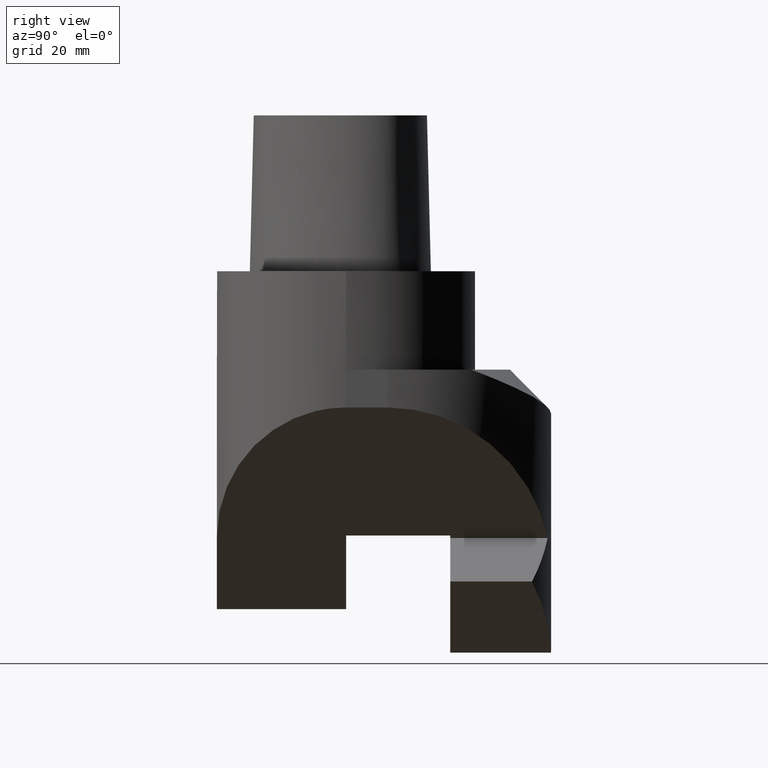
[diagram: clean part render]
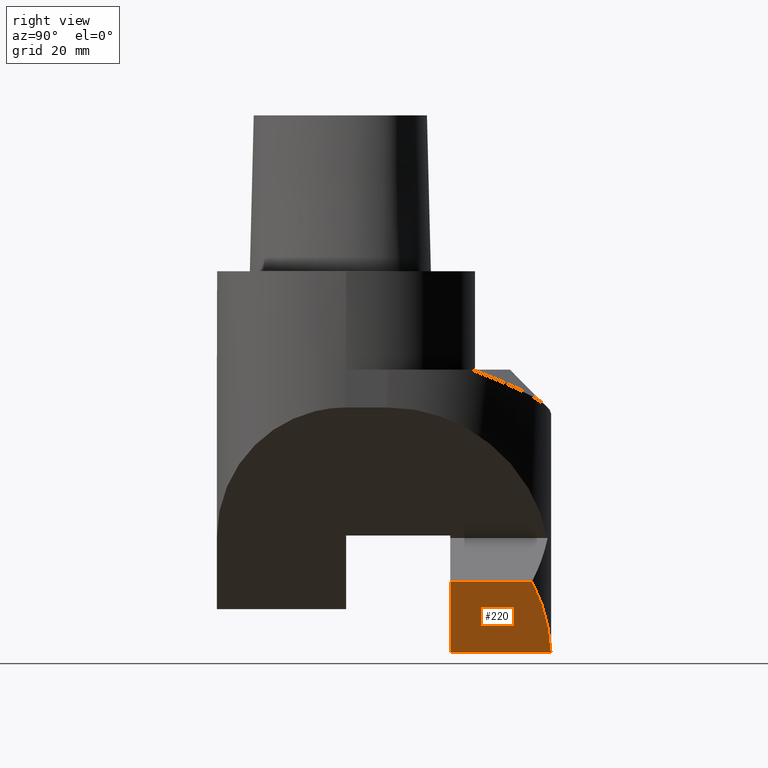
[diagram: same view with one face highlighted and labeled with its STEP entity id]
A machine part, right view. The second image highlights one B-rep face of the part: STEP entity #220.
In plain terms, the highlighted planar face has unit normal (-0.7071, 0, 0.7071).
Its self-contained STEP definition (entity closure, byte-faithful):
#205=EDGE_CURVE('Unnamed[1]',#397,#466,#467,.T.);
#215=EDGE_CURVE('Unnamed[1]',#397,#379,#478,.T.);
#220=ADVANCED_FACE('Unnamed[1]',(#483),#484,.F.);
#244=EDGE_CURVE('Unnamed[1]',#390,#466,#515,.T.);
#291=EDGE_CURVE('Unnamed[1]',#379,#390,#568,.T.);
#379=VERTEX_POINT('',#681);
#390=VERTEX_POINT('',#695);
#397=VERTEX_POINT('',#705);
#466=VERTEX_POINT('',#963);
#467=LINE('',#964,#965);
#478=LINE('',#1006,#1007);
#483=FACE_OUTER_BOUND('',#1014,.T.);
#484=PLANE('',#1015);
#515=LINE('',#1078,#1079);
#568=ELLIPSE('',#1200,56.5685424949241,40.0);
#681=CARTESIAN_POINT('',(10.253271031921,45.331147528125,-75.6756611562134));
#695=CARTESIAN_POINT('',(-7.07106781186543,49.9744450828431,-93.0));
#705=CARTESIAN_POINT('',(10.253271031921,25.4000707427662,-75.6756611562134));
#963=CARTESIAN_POINT('',(-7.07113729083583,25.3999759644538,-93.0000694789704));
#964=CARTESIAN_POINT('',(-2.74005258002291,25.3999996589369,-88.6689847681575));
#965=VECTOR('',#1406,1.0);
#1006=CARTESIAN_POINT('',(10.253271031921,-1.86868676163768E-014,-75.6756611562134));
#1007=VECTOR('',#1412,1.0);
#1014=EDGE_LOOP('',(#1417,#1418,#1419,#1420));
#1015=AXIS2_PLACEMENT_3D('',#1421,#1422,#1423);
#1078=CARTESIAN_POINT('',(-7.07106781186545,-1.93512141736747E-014,-93.0));
#1079=VECTOR('',#1451,1.0);
#1200=AXIS2_PLACEMENT_3D('',#1512,#1513,#1514);
#1406=DIRECTION('',(-0.707106781181254,-3.86843730355812E-006,-0.70710678118126));
#1412=DIRECTION('',(1.83697019872103E-016,1.0,-2.22044604925031E-016));
#1417=ORIENTED_EDGE('',*,*,#205,.T.);
#1418=ORIENTED_EDGE('',*,*,#244,.F.);
#1419=ORIENTED_EDGE('',*,*,#291,.F.);
#1420=ORIENTED_EDGE('',*,*,#215,.F.);
#1421=CARTESIAN_POINT('',(1.59110161002779,-1.90190408950257E-014,-84.3378305781067));
#1422=DIRECTION('',(-0.70710678118655,2.86902654303701E-016,0.707106781186545));
#1423=DIRECTION('',(0.707106781186545,2.71158374330547E-017,0.70710678118655));
#1451=DIRECTION('',(-1.83697019872103E-016,-1.0,2.22044604925031E-016));
#1512=CARTESIAN_POINT('',(-8.5006622714123,10.0000000000001,-94.4295944595469));
#1513=DIRECTION('',(-0.70710678118655,2.86902654303701E-016,0.707106781186544));
#1514=DIRECTION('',(-0.707106781186544,-8.99847633952524E-017,-0.70710678118655));